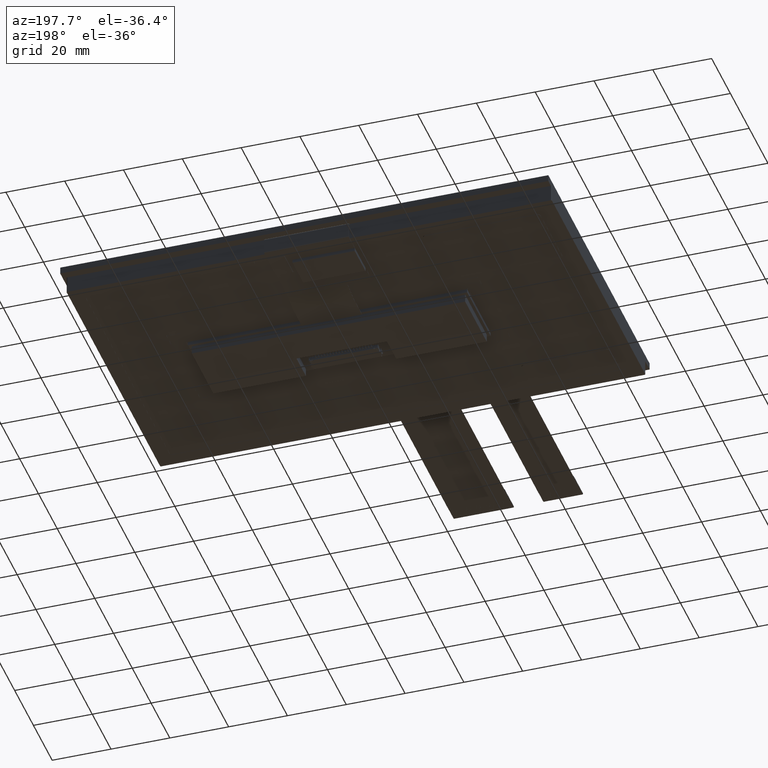
[diagram: clean part render]
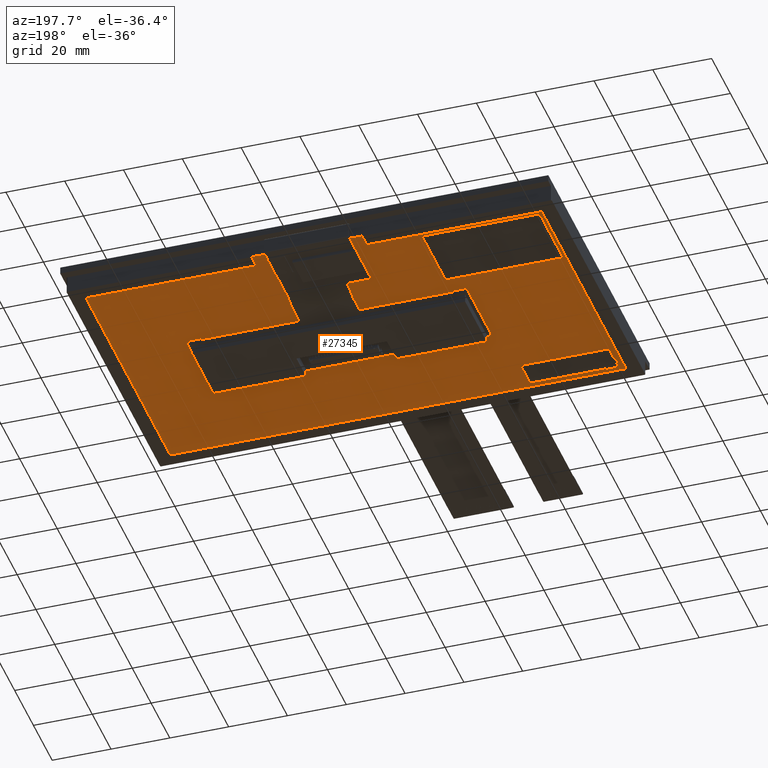
[diagram: same view with one face highlighted and labeled with its STEP entity id]
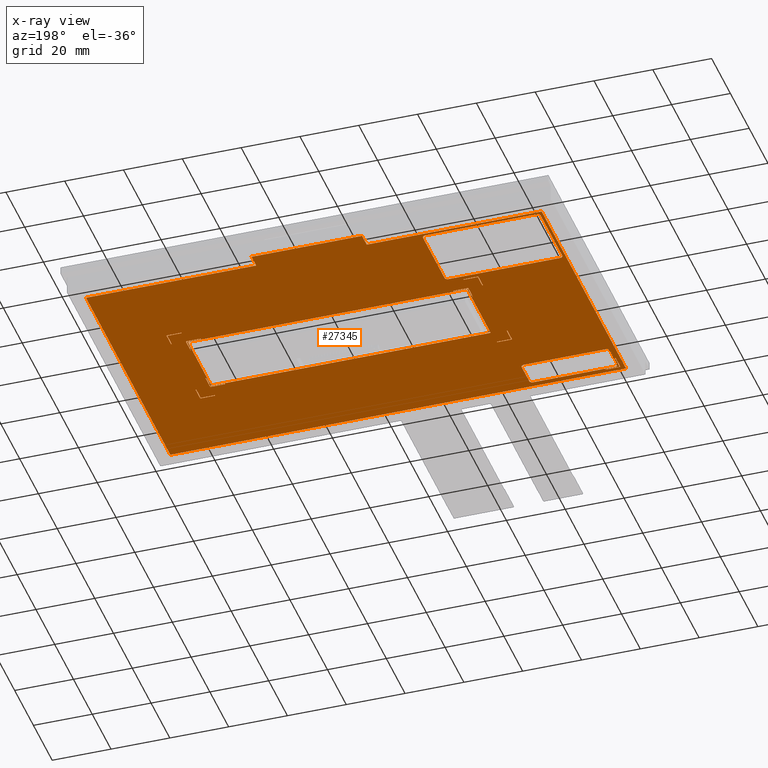
[diagram: x-ray of the same camera — body ghosted, the highlighted face saturated]
A machine part, auxiliary view. The second image highlights one B-rep face of the part: STEP entity #27345.
The next image is the same camera in x-ray: the body ghosted, the highlighted face saturated — about 0% of this face is hidden behind the body in this view.
In plain terms, the highlighted planar face has unit normal (0, -0, -1).
Its self-contained STEP definition (entity closure, byte-faithful):
#115=CIRCLE('',#27469,1.);
#119=CIRCLE('',#27476,1.);
#120=CIRCLE('',#27478,1.);
#121=CIRCLE('',#27481,1.);
#132=CIRCLE('',#27804,1.);
#134=CIRCLE('',#27808,1.00000000000003);
#136=CIRCLE('',#27812,0.999999999999999);
#138=CIRCLE('',#27816,0.999999999999976);
#753=FACE_BOUND('',#3526,.T.);
#754=FACE_BOUND('',#3527,.T.);
#755=FACE_BOUND('',#3528,.T.);
#756=FACE_BOUND('',#3529,.T.);
#757=FACE_BOUND('',#3530,.T.);
#758=FACE_BOUND('',#3531,.T.);
#759=FACE_BOUND('',#3532,.T.);
#760=FACE_BOUND('',#3533,.T.);
#761=FACE_BOUND('',#3534,.T.);
#762=FACE_BOUND('',#3535,.T.);
#763=FACE_BOUND('',#3536,.T.);
#2075=FACE_OUTER_BOUND('',#3525,.T.);
#3525=EDGE_LOOP('',(#24510,#24511,#24512,#24513,#24514,#24515,#24516,#24517));
#3526=EDGE_LOOP('',(#24518,#24519,#24520,#24521,#24522,#24523,#24524,#24525));
#3527=EDGE_LOOP('',(#24526,#24527,#24528,#24529,#24530,#24531,#24532,#24533));
#3528=EDGE_LOOP('',(#24534,#24535,#24536,#24537));
#3529=EDGE_LOOP('',(#24538,#24539,#24540,#24541,#24542,#24543));
#3530=EDGE_LOOP('',(#24544,#24545,#24546,#24547,#24548,#24549));
#3531=EDGE_LOOP('',(#24550,#24551,#24552,#24553,#24554,#24555));
#3532=EDGE_LOOP('',(#24556,#24557,#24558,#24559,#24560,#24561));
#3533=EDGE_LOOP('',(#24562,#24563,#24564,#24565,#24566,#24567));
#3534=EDGE_LOOP('',(#24568,#24569,#24570,#24571,#24572,#24573));
#3535=EDGE_LOOP('',(#24574,#24575,#24576,#24577,#24578,#24579));
#3536=EDGE_LOOP('',(#24580,#24581,#24582,#24583,#24584,#24585));
#3689=LINE('',#36575,#7159);
#3695=LINE('',#36590,#7165);
#3697=LINE('',#36596,#7167);
#3698=LINE('',#36598,#7168);
#4604=LINE('',#38442,#8074);
#4608=LINE('',#38454,#8078);
#4612=LINE('',#38466,#8082);
#4616=LINE('',#38477,#8086);
#6884=LINE('',#43853,#10354);
#6887=LINE('',#43858,#10357);
#6889=LINE('',#43862,#10359);
#6891=LINE('',#43865,#10361);
#6892=LINE('',#43869,#10362);
#6896=LINE('',#43877,#10366);
#6899=LINE('',#43883,#10369);
#6902=LINE('',#43889,#10372);
#6905=LINE('',#43895,#10375);
#6908=LINE('',#43901,#10378);
#6911=LINE('',#43907,#10381);
#6918=LINE('',#43925,#10388);
#6919=LINE('',#43928,#10389);
#6920=LINE('',#43930,#10390);
#6921=LINE('',#43932,#10391);
#6922=LINE('',#43934,#10392);
#6923=LINE('',#43936,#10393);
#6924=LINE('',#43937,#10394);
#6925=LINE('',#43940,#10395);
#6926=LINE('',#43942,#10396);
#6927=LINE('',#43944,#10397);
#6928=LINE('',#43946,#10398);
#6929=LINE('',#43948,#10399);
#6930=LINE('',#43949,#10400);
#6931=LINE('',#43952,#10401);
#6932=LINE('',#43954,#10402);
#6933=LINE('',#43956,#10403);
#6934=LINE('',#43958,#10404);
#6935=LINE('',#43960,#10405);
#6936=LINE('',#43961,#10406);
#6937=LINE('',#43964,#10407);
#6938=LINE('',#43966,#10408);
#6939=LINE('',#43968,#10409);
#6940=LINE('',#43970,#10410);
#6941=LINE('',#43972,#10411);
#6942=LINE('',#43973,#10412);
#6943=LINE('',#43976,#10413);
#6944=LINE('',#43978,#10414);
#6945=LINE('',#43980,#10415);
#6946=LINE('',#43982,#10416);
#6947=LINE('',#43984,#10417);
#6948=LINE('',#43985,#10418);
#6949=LINE('',#43988,#10419);
#6950=LINE('',#43990,#10420);
#6951=LINE('',#43992,#10421);
#6952=LINE('',#43994,#10422);
#6953=LINE('',#43996,#10423);
#6954=LINE('',#43997,#10424);
#6955=LINE('',#44000,#10425);
#6956=LINE('',#44002,#10426);
#6957=LINE('',#44004,#10427);
#6958=LINE('',#44006,#10428);
#6959=LINE('',#44008,#10429);
#6960=LINE('',#44009,#10430);
#6961=LINE('',#44012,#10431);
#6962=LINE('',#44014,#10432);
#6963=LINE('',#44016,#10433);
#6964=LINE('',#44018,#10434);
#6965=LINE('',#44020,#10435);
#6966=LINE('',#44021,#10436);
#7159=VECTOR('',#29430,10.);
#7165=VECTOR('',#29446,10.);
#7167=VECTOR('',#29454,10.);
#7168=VECTOR('',#29457,10.);
#8074=VECTOR('',#31009,10.);
#8078=VECTOR('',#31021,10.);
#8082=VECTOR('',#31033,10.);
#8086=VECTOR('',#31045,10.);
#10354=VECTOR('',#36029,10.);
#10357=VECTOR('',#36034,10.);
#10359=VECTOR('',#36038,10.);
#10361=VECTOR('',#36042,10.);
#10362=VECTOR('',#36045,10.);
#10366=VECTOR('',#36051,10.);
#10369=VECTOR('',#36056,10.);
#10372=VECTOR('',#36061,10.);
#10375=VECTOR('',#36066,10.);
#10378=VECTOR('',#36071,10.);
#10381=VECTOR('',#36076,10.);
#10388=VECTOR('',#36093,1000.);
#10389=VECTOR('',#36094,1000.);
#10390=VECTOR('',#36095,1000.);
#10391=VECTOR('',#36096,1000.);
#10392=VECTOR('',#36097,1000.);
#10393=VECTOR('',#36098,1000.);
#10394=VECTOR('',#36099,1000.);
#10395=VECTOR('',#36100,1000.);
#10396=VECTOR('',#36101,1000.);
#10397=VECTOR('',#36102,1000.);
#10398=VECTOR('',#36103,1000.);
#10399=VECTOR('',#36104,1000.);
#10400=VECTOR('',#36105,1000.);
#10401=VECTOR('',#36106,1000.);
#10402=VECTOR('',#36107,1000.);
#10403=VECTOR('',#36108,1000.);
#10404=VECTOR('',#36109,1000.);
#10405=VECTOR('',#36110,1000.);
#10406=VECTOR('',#36111,1000.);
#10407=VECTOR('',#36112,1000.);
#10408=VECTOR('',#36113,1000.);
#10409=VECTOR('',#36114,1000.);
#10410=VECTOR('',#36115,1000.);
#10411=VECTOR('',#36116,1000.);
#10412=VECTOR('',#36117,1000.);
#10413=VECTOR('',#36118,1000.);
#10414=VECTOR('',#36119,1000.);
#10415=VECTOR('',#36120,1000.);
#10416=VECTOR('',#36121,1000.);
#10417=VECTOR('',#36122,1000.);
#10418=VECTOR('',#36123,1000.);
#10419=VECTOR('',#36124,1000.);
#10420=VECTOR('',#36125,1000.);
#10421=VECTOR('',#36126,1000.);
#10422=VECTOR('',#36127,1000.);
#10423=VECTOR('',#36128,1000.);
#10424=VECTOR('',#36129,1000.);
#10425=VECTOR('',#36130,1000.);
#10426=VECTOR('',#36131,1000.);
#10427=VECTOR('',#36132,1000.);
#10428=VECTOR('',#36133,1000.);
#10429=VECTOR('',#36134,1000.);
#10430=VECTOR('',#36135,1000.);
#10431=VECTOR('',#36136,1000.);
#10432=VECTOR('',#36137,1000.);
#10433=VECTOR('',#36138,1000.);
#10434=VECTOR('',#36139,1000.);
#10435=VECTOR('',#36140,1000.);
#10436=VECTOR('',#36141,1000.);
#10599=VERTEX_POINT('',#36554);
#10600=VERTEX_POINT('',#36556);
#10607=VERTEX_POINT('',#36574);
#10608=VERTEX_POINT('',#36578);
#10609=VERTEX_POINT('',#36582);
#10610=VERTEX_POINT('',#36584);
#10611=VERTEX_POINT('',#36588);
#10612=VERTEX_POINT('',#36592);
#11223=VERTEX_POINT('',#38432);
#11224=VERTEX_POINT('',#38433);
#11227=VERTEX_POINT('',#38441);
#11229=VERTEX_POINT('',#38447);
#11231=VERTEX_POINT('',#38453);
#11233=VERTEX_POINT('',#38459);
#11235=VERTEX_POINT('',#38465);
#11237=VERTEX_POINT('',#38471);
#12987=VERTEX_POINT('',#43851);
#12988=VERTEX_POINT('',#43852);
#12989=VERTEX_POINT('',#43857);
#12990=VERTEX_POINT('',#43861);
#12991=VERTEX_POINT('',#43867);
#12992=VERTEX_POINT('',#43868);
#12995=VERTEX_POINT('',#43876);
#12997=VERTEX_POINT('',#43882);
#12999=VERTEX_POINT('',#43888);
#13001=VERTEX_POINT('',#43894);
#13003=VERTEX_POINT('',#43900);
#13005=VERTEX_POINT('',#43906);
#13012=VERTEX_POINT('',#43926);
#13013=VERTEX_POINT('',#43927);
#13014=VERTEX_POINT('',#43929);
#13015=VERTEX_POINT('',#43931);
#13016=VERTEX_POINT('',#43933);
#13017=VERTEX_POINT('',#43935);
#13018=VERTEX_POINT('',#43938);
#13019=VERTEX_POINT('',#43939);
#13020=VERTEX_POINT('',#43941);
#13021=VERTEX_POINT('',#43943);
#13022=VERTEX_POINT('',#43945);
#13023=VERTEX_POINT('',#43947);
#13024=VERTEX_POINT('',#43950);
#13025=VERTEX_POINT('',#43951);
#13026=VERTEX_POINT('',#43953);
#13027=VERTEX_POINT('',#43955);
#13028=VERTEX_POINT('',#43957);
#13029=VERTEX_POINT('',#43959);
#13030=VERTEX_POINT('',#43962);
#13031=VERTEX_POINT('',#43963);
#13032=VERTEX_POINT('',#43965);
#13033=VERTEX_POINT('',#43967);
#13034=VERTEX_POINT('',#43969);
#13035=VERTEX_POINT('',#43971);
#13036=VERTEX_POINT('',#43974);
#13037=VERTEX_POINT('',#43975);
#13038=VERTEX_POINT('',#43977);
#13039=VERTEX_POINT('',#43979);
#13040=VERTEX_POINT('',#43981);
#13041=VERTEX_POINT('',#43983);
#13042=VERTEX_POINT('',#43986);
#13043=VERTEX_POINT('',#43987);
#13044=VERTEX_POINT('',#43989);
#13045=VERTEX_POINT('',#43991);
#13046=VERTEX_POINT('',#43993);
#13047=VERTEX_POINT('',#43995);
#13048=VERTEX_POINT('',#43998);
#13049=VERTEX_POINT('',#43999);
#13050=VERTEX_POINT('',#44001);
#13051=VERTEX_POINT('',#44003);
#13052=VERTEX_POINT('',#44005);
#13053=VERTEX_POINT('',#44007);
#13054=VERTEX_POINT('',#44010);
#13055=VERTEX_POINT('',#44011);
#13056=VERTEX_POINT('',#44013);
#13057=VERTEX_POINT('',#44015);
#13058=VERTEX_POINT('',#44017);
#13059=VERTEX_POINT('',#44019);
#13197=EDGE_CURVE('',#10600,#10599,#115,.T.);
#13206=EDGE_CURVE('',#10607,#10600,#3689,.T.);
#13208=EDGE_CURVE('',#10608,#10607,#119,.T.);
#13211=EDGE_CURVE('',#10610,#10609,#120,.T.);
#13214=EDGE_CURVE('',#10609,#10611,#3695,.T.);
#13216=EDGE_CURVE('',#10611,#10612,#121,.T.);
#13217=EDGE_CURVE('',#10612,#10608,#3697,.T.);
#13218=EDGE_CURVE('',#10599,#10610,#3698,.T.);
#14132=EDGE_CURVE('',#11223,#11224,#132,.T.);
#14136=EDGE_CURVE('',#11227,#11223,#4604,.T.);
#14139=EDGE_CURVE('',#11229,#11227,#134,.T.);
#14142=EDGE_CURVE('',#11231,#11229,#4608,.T.);
#14145=EDGE_CURVE('',#11233,#11231,#136,.T.);
#14148=EDGE_CURVE('',#11235,#11233,#4612,.T.);
#14151=EDGE_CURVE('',#11237,#11235,#138,.T.);
#14154=EDGE_CURVE('',#11224,#11237,#4616,.T.);
#16840=EDGE_CURVE('',#12987,#12988,#6884,.T.);
#16843=EDGE_CURVE('',#12989,#12987,#6887,.T.);
#16845=EDGE_CURVE('',#12990,#12989,#6889,.T.);
#16847=EDGE_CURVE('',#12988,#12990,#6891,.T.);
#16848=EDGE_CURVE('',#12991,#12992,#6892,.T.);
#16852=EDGE_CURVE('',#12992,#12995,#6896,.T.);
#16855=EDGE_CURVE('',#12995,#12997,#6899,.T.);
#16858=EDGE_CURVE('',#12997,#12999,#6902,.T.);
#16861=EDGE_CURVE('',#12999,#13001,#6905,.T.);
#16864=EDGE_CURVE('',#13001,#13003,#6908,.T.);
#16867=EDGE_CURVE('',#13003,#13005,#6911,.T.);
#16877=EDGE_CURVE('',#12991,#13005,#6918,.T.);
#16878=EDGE_CURVE('',#13012,#13013,#6919,.T.);
#16879=EDGE_CURVE('',#13014,#13012,#6920,.T.);
#16880=EDGE_CURVE('',#13015,#13014,#6921,.T.);
#16881=EDGE_CURVE('',#13016,#13015,#6922,.T.);
#16882=EDGE_CURVE('',#13017,#13016,#6923,.T.);
#16883=EDGE_CURVE('',#13013,#13017,#6924,.T.);
#16884=EDGE_CURVE('',#13018,#13019,#6925,.T.);
#16885=EDGE_CURVE('',#13020,#13018,#6926,.T.);
#16886=EDGE_CURVE('',#13021,#13020,#6927,.T.);
#16887=EDGE_CURVE('',#13022,#13021,#6928,.T.);
#16888=EDGE_CURVE('',#13023,#13022,#6929,.T.);
#16889=EDGE_CURVE('',#13019,#13023,#6930,.T.);
#16890=EDGE_CURVE('',#13024,#13025,#6931,.T.);
#16891=EDGE_CURVE('',#13026,#13024,#6932,.T.);
#16892=EDGE_CURVE('',#13027,#13026,#6933,.T.);
#16893=EDGE_CURVE('',#13028,#13027,#6934,.T.);
#16894=EDGE_CURVE('',#13029,#13028,#6935,.T.);
#16895=EDGE_CURVE('',#13025,#13029,#6936,.T.);
#16896=EDGE_CURVE('',#13030,#13031,#6937,.T.);
#16897=EDGE_CURVE('',#13032,#13030,#6938,.T.);
#16898=EDGE_CURVE('',#13033,#13032,#6939,.T.);
#16899=EDGE_CURVE('',#13034,#13033,#6940,.T.);
#16900=EDGE_CURVE('',#13035,#13034,#6941,.T.);
#16901=EDGE_CURVE('',#13031,#13035,#6942,.T.);
#16902=EDGE_CURVE('',#13036,#13037,#6943,.T.);
#16903=EDGE_CURVE('',#13038,#13036,#6944,.T.);
#16904=EDGE_CURVE('',#13039,#13038,#6945,.T.);
#16905=EDGE_CURVE('',#13040,#13039,#6946,.T.);
#16906=EDGE_CURVE('',#13041,#13040,#6947,.T.);
#16907=EDGE_CURVE('',#13037,#13041,#6948,.T.);
#16908=EDGE_CURVE('',#13042,#13043,#6949,.T.);
#16909=EDGE_CURVE('',#13044,#13042,#6950,.T.);
#16910=EDGE_CURVE('',#13045,#13044,#6951,.T.);
#16911=EDGE_CURVE('',#13046,#13045,#6952,.T.);
#16912=EDGE_CURVE('',#13047,#13046,#6953,.T.);
#16913=EDGE_CURVE('',#13043,#13047,#6954,.T.);
#16914=EDGE_CURVE('',#13048,#13049,#6955,.T.);
#16915=EDGE_CURVE('',#13050,#13048,#6956,.T.);
#16916=EDGE_CURVE('',#13051,#13050,#6957,.T.);
#16917=EDGE_CURVE('',#13052,#13051,#6958,.T.);
#16918=EDGE_CURVE('',#13053,#13052,#6959,.T.);
#16919=EDGE_CURVE('',#13049,#13053,#6960,.T.);
#16920=EDGE_CURVE('',#13054,#13055,#6961,.T.);
#16921=EDGE_CURVE('',#13056,#13054,#6962,.T.);
#16922=EDGE_CURVE('',#13057,#13056,#6963,.T.);
#16923=EDGE_CURVE('',#13058,#13057,#6964,.T.);
#16924=EDGE_CURVE('',#13059,#13058,#6965,.T.);
#16925=EDGE_CURVE('',#13055,#13059,#6966,.T.);
#24510=ORIENTED_EDGE('',*,*,#16848,.T.);
#24511=ORIENTED_EDGE('',*,*,#16852,.T.);
#24512=ORIENTED_EDGE('',*,*,#16855,.T.);
#24513=ORIENTED_EDGE('',*,*,#16858,.T.);
#24514=ORIENTED_EDGE('',*,*,#16861,.T.);
#24515=ORIENTED_EDGE('',*,*,#16864,.T.);
#24516=ORIENTED_EDGE('',*,*,#16867,.T.);
#24517=ORIENTED_EDGE('',*,*,#16877,.F.);
#24518=ORIENTED_EDGE('',*,*,#13211,.T.);
#24519=ORIENTED_EDGE('',*,*,#13214,.T.);
#24520=ORIENTED_EDGE('',*,*,#13216,.T.);
#24521=ORIENTED_EDGE('',*,*,#13217,.T.);
#24522=ORIENTED_EDGE('',*,*,#13208,.T.);
#24523=ORIENTED_EDGE('',*,*,#13206,.T.);
#24524=ORIENTED_EDGE('',*,*,#13197,.T.);
#24525=ORIENTED_EDGE('',*,*,#13218,.T.);
#24526=ORIENTED_EDGE('',*,*,#14132,.T.);
#24527=ORIENTED_EDGE('',*,*,#14154,.T.);
#24528=ORIENTED_EDGE('',*,*,#14151,.T.);
#24529=ORIENTED_EDGE('',*,*,#14148,.T.);
#24530=ORIENTED_EDGE('',*,*,#14145,.T.);
#24531=ORIENTED_EDGE('',*,*,#14142,.T.);
#24532=ORIENTED_EDGE('',*,*,#14139,.T.);
#24533=ORIENTED_EDGE('',*,*,#14136,.T.);
#24534=ORIENTED_EDGE('',*,*,#16840,.T.);
#24535=ORIENTED_EDGE('',*,*,#16847,.T.);
#24536=ORIENTED_EDGE('',*,*,#16845,.T.);
#24537=ORIENTED_EDGE('',*,*,#16843,.T.);
#24538=ORIENTED_EDGE('',*,*,#16878,.F.);
#24539=ORIENTED_EDGE('',*,*,#16879,.F.);
#24540=ORIENTED_EDGE('',*,*,#16880,.F.);
#24541=ORIENTED_EDGE('',*,*,#16881,.F.);
#24542=ORIENTED_EDGE('',*,*,#16882,.F.);
#24543=ORIENTED_EDGE('',*,*,#16883,.F.);
#24544=ORIENTED_EDGE('',*,*,#16884,.F.);
#24545=ORIENTED_EDGE('',*,*,#16885,.F.);
#24546=ORIENTED_EDGE('',*,*,#16886,.F.);
#24547=ORIENTED_EDGE('',*,*,#16887,.F.);
#24548=ORIENTED_EDGE('',*,*,#16888,.F.);
#24549=ORIENTED_EDGE('',*,*,#16889,.F.);
#24550=ORIENTED_EDGE('',*,*,#16890,.F.);
#24551=ORIENTED_EDGE('',*,*,#16891,.F.);
#24552=ORIENTED_EDGE('',*,*,#16892,.F.);
#24553=ORIENTED_EDGE('',*,*,#16893,.F.);
#24554=ORIENTED_EDGE('',*,*,#16894,.F.);
#24555=ORIENTED_EDGE('',*,*,#16895,.F.);
#24556=ORIENTED_EDGE('',*,*,#16896,.F.);
#24557=ORIENTED_EDGE('',*,*,#16897,.F.);
#24558=ORIENTED_EDGE('',*,*,#16898,.F.);
#24559=ORIENTED_EDGE('',*,*,#16899,.F.);
#24560=ORIENTED_EDGE('',*,*,#16900,.F.);
#24561=ORIENTED_EDGE('',*,*,#16901,.F.);
#24562=ORIENTED_EDGE('',*,*,#16902,.F.);
#24563=ORIENTED_EDGE('',*,*,#16903,.F.);
#24564=ORIENTED_EDGE('',*,*,#16904,.F.);
#24565=ORIENTED_EDGE('',*,*,#16905,.F.);
#24566=ORIENTED_EDGE('',*,*,#16906,.F.);
#24567=ORIENTED_EDGE('',*,*,#16907,.F.);
#24568=ORIENTED_EDGE('',*,*,#16908,.F.);
#24569=ORIENTED_EDGE('',*,*,#16909,.F.);
#24570=ORIENTED_EDGE('',*,*,#16910,.F.);
#24571=ORIENTED_EDGE('',*,*,#16911,.F.);
#24572=ORIENTED_EDGE('',*,*,#16912,.F.);
#24573=ORIENTED_EDGE('',*,*,#16913,.F.);
#24574=ORIENTED_EDGE('',*,*,#16914,.F.);
#24575=ORIENTED_EDGE('',*,*,#16915,.F.);
#24576=ORIENTED_EDGE('',*,*,#16916,.F.);
#24577=ORIENTED_EDGE('',*,*,#16917,.F.);
#24578=ORIENTED_EDGE('',*,*,#16918,.F.);
#24579=ORIENTED_EDGE('',*,*,#16919,.F.);
#24580=ORIENTED_EDGE('',*,*,#16920,.F.);
#24581=ORIENTED_EDGE('',*,*,#16921,.F.);
#24582=ORIENTED_EDGE('',*,*,#16922,.F.);
#24583=ORIENTED_EDGE('',*,*,#16923,.F.);
#24584=ORIENTED_EDGE('',*,*,#16924,.F.);
#24585=ORIENTED_EDGE('',*,*,#16925,.F.);
#25974=PLANE('',#29191);
#27345=ADVANCED_FACE('',(#2075,#753,#754,#755,#756,#757,#758,#759,#760,
#761,#762,#763),#25974,.T.);
#27469=AXIS2_PLACEMENT_3D('',#36557,#29413,#29414);
#27476=AXIS2_PLACEMENT_3D('',#36579,#29434,#29435);
#27478=AXIS2_PLACEMENT_3D('',#36585,#29440,#29441);
#27481=AXIS2_PLACEMENT_3D('',#36594,#29450,#29451);
#27804=AXIS2_PLACEMENT_3D('',#38434,#31001,#31002);
#27808=AXIS2_PLACEMENT_3D('',#38448,#31014,#31015);
#27812=AXIS2_PLACEMENT_3D('',#38460,#31026,#31027);
#27816=AXIS2_PLACEMENT_3D('',#38472,#31038,#31039);
#29191=AXIS2_PLACEMENT_3D('',#43924,#36091,#36092);
#29413=DIRECTION('center_axis',(-1.46302386084131E-98,5.00520773795775E-147,
1.));
#29414=DIRECTION('ref_axis',(-0.707106781186548,-0.707106781186547,1.14854136539068E-113));
#29430=DIRECTION('',(1.33226762955019E-16,-1.,1.94913933105842E-114));
#29434=DIRECTION('center_axis',(-1.46302386084131E-98,5.00520773795775E-147,
1.));
#29435=DIRECTION('ref_axis',(-0.707106781186547,0.707106781186548,1.14854136539068E-113));
#29440=DIRECTION('center_axis',(-1.46302386084131E-98,5.00520773795775E-147,
1.));
#29441=DIRECTION('ref_axis',(0.707106781186549,-0.707106781186546,-1.14854136539069E-113));
#29446=DIRECTION('',(4.88498130835069E-16,1.,7.14684421388087E-114));
#29450=DIRECTION('center_axis',(-1.46302386084131E-98,5.00520773795775E-147,
1.));
#29451=DIRECTION('ref_axis',(0.707106781186548,0.707106781186547,-1.14854136539068E-113));
#29454=DIRECTION('',(-1.,-1.05531781441081E-227,-1.46302386084131E-98));
#29457=DIRECTION('',(1.,-2.22044604925031E-16,1.46302386084131E-98));
#31001=DIRECTION('center_axis',(-1.46302386084131E-98,5.00520773795775E-147,
1.));
#31002=DIRECTION('ref_axis',(-1.,-4.29467087377735E-228,-1.46302386084131E-98));
#31009=DIRECTION('',(0.,-1.,5.00520773795775E-147));
#31014=DIRECTION('center_axis',(-1.46302386084131E-98,5.00520773795775E-147,
1.));
#31015=DIRECTION('ref_axis',(-1.,-4.29467087377735E-228,-1.46302386084131E-98));
#31021=DIRECTION('',(-1.,-4.29467087377735E-228,-1.46302386084131E-98));
#31026=DIRECTION('center_axis',(-1.46302386084131E-98,5.00520773795775E-147,
1.));
#31027=DIRECTION('ref_axis',(-1.,-4.29467087377735E-228,-1.46302386084131E-98));
#31033=DIRECTION('',(0.,1.,-5.00520773795775E-147));
#31038=DIRECTION('center_axis',(-1.46302386084131E-98,5.00520773795775E-147,
1.));
#31039=DIRECTION('ref_axis',(-1.,-4.29467087377735E-228,-1.46302386084131E-98));
#31045=DIRECTION('',(1.,4.29467087377735E-228,1.46302386084131E-98));
#36029=DIRECTION('',(0.,1.,-5.00520773795775E-147));
#36034=DIRECTION('',(1.,4.29467087377735E-228,1.46302386084131E-98));
#36038=DIRECTION('',(0.,-1.,5.00520773795775E-147));
#36042=DIRECTION('',(-1.,-4.29467087377735E-228,-1.46302386084131E-98));
#36045=DIRECTION('',(0.,-1.,5.00520773795775E-147));
#36051=DIRECTION('',(1.,4.29467087377735E-228,1.46302386084131E-98));
#36056=DIRECTION('',(0.,-1.,5.00520773795775E-147));
#36061=DIRECTION('',(-1.,-4.29467087377735E-228,-1.46302386084131E-98));
#36066=DIRECTION('',(0.,1.,-5.00520773795775E-147));
#36071=DIRECTION('',(1.,4.29467087377735E-228,1.46302386084131E-98));
#36076=DIRECTION('',(0.,1.,-5.00520773795775E-147));
#36091=DIRECTION('center_axis',(1.46302386084131E-98,-5.00520773795775E-147,
-1.));
#36092=DIRECTION('ref_axis',(1.,4.29467087377735E-228,1.46302386084131E-98));
#36093=DIRECTION('',(-1.,-4.29467087377735E-228,-1.46302386084131E-98));
#36094=DIRECTION('',(0.,-1.,5.00520773795775E-147));
#36095=DIRECTION('',(1.,4.29467087377735E-228,1.46302386084131E-98));
#36096=DIRECTION('',(0.,1.,-5.00520773795775E-147));
#36097=DIRECTION('',(-1.,-4.29467087377735E-228,-1.46302386084131E-98));
#36098=DIRECTION('',(0.,1.,-5.00520773795775E-147));
#36099=DIRECTION('',(-1.,-4.29467087377735E-228,-1.46302386084131E-98));
#36100=DIRECTION('',(-1.,-4.29467087377735E-228,-1.46302386084131E-98));
#36101=DIRECTION('',(0.,-1.,5.00520773795775E-147));
#36102=DIRECTION('',(1.,4.29467087377735E-228,1.46302386084131E-98));
#36103=DIRECTION('',(0.,1.,-5.00520773795775E-147));
#36104=DIRECTION('',(-1.,-4.29467087377735E-228,-1.46302386084131E-98));
#36105=DIRECTION('',(0.,-1.,5.00520773795775E-147));
#36106=DIRECTION('',(-1.,-4.29467087377735E-228,-1.46302386084131E-98));
#36107=DIRECTION('',(0.,-1.,5.00520773795775E-147));
#36108=DIRECTION('',(1.,4.29467087377735E-228,1.46302386084131E-98));
#36109=DIRECTION('',(0.,1.,-5.00520773795775E-147));
#36110=DIRECTION('',(1.,4.29467087377735E-228,1.46302386084131E-98));
#36111=DIRECTION('',(0.,1.,-5.00520773795775E-147));
#36112=DIRECTION('',(0.,1.,-5.00520773795775E-147));
#36113=DIRECTION('',(-1.,-4.29467087377735E-228,-1.46302386084131E-98));
#36114=DIRECTION('',(0.,-1.,5.00520773795775E-147));
#36115=DIRECTION('',(1.,4.29467087377735E-228,1.46302386084131E-98));
#36116=DIRECTION('',(0.,-1.,5.00520773795775E-147));
#36117=DIRECTION('',(1.,4.29467087377735E-228,1.46302386084131E-98));
#36118=DIRECTION('',(0.,-1.,5.00520773795775E-147));
#36119=DIRECTION('',(1.,4.29467087377735E-228,1.46302386084131E-98));
#36120=DIRECTION('',(0.,1.,-5.00520773795775E-147));
#36121=DIRECTION('',(-1.,-4.29467087377735E-228,-1.46302386084131E-98));
#36122=DIRECTION('',(0.,-1.,5.00520773795775E-147));
#36123=DIRECTION('',(1.,4.29467087377735E-228,1.46302386084131E-98));
#36124=DIRECTION('',(0.,-1.,5.00520773795775E-147));
#36125=DIRECTION('',(-1.,2.89120579329468E-15,-1.46302386084131E-98));
#36126=DIRECTION('',(0.,-1.,5.00520773795775E-147));
#36127=DIRECTION('',(1.,4.29467087377735E-228,1.46302386084131E-98));
#36128=DIRECTION('',(2.77555756156289E-15,1.,4.06070693970504E-113));
#36129=DIRECTION('',(-1.,-4.29467087377735E-228,-1.46302386084131E-98));
#36130=DIRECTION('',(0.,1.,-5.00520773795775E-147));
#36131=DIRECTION('',(-1.,-4.29467087377735E-228,-1.46302386084131E-98));
#36132=DIRECTION('',(1.38777878078145E-15,-1.,2.03035346985252E-113));
#36133=DIRECTION('',(1.,-2.77555756156289E-15,1.46302386084131E-98));
#36134=DIRECTION('',(0.,1.,-5.00520773795775E-147));
#36135=DIRECTION('',(-1.,-4.29467087377735E-228,-1.46302386084131E-98));
#36136=DIRECTION('',(0.,1.,-5.00520773795775E-147));
#36137=DIRECTION('',(-1.,-2.77555756156289E-15,-1.46302386084131E-98));
#36138=DIRECTION('',(-1.38777878078145E-15,-1.,-2.03035346985252E-113));
#36139=DIRECTION('',(1.,4.29467087377735E-228,1.46302386084131E-98));
#36140=DIRECTION('',(0.,1.,-5.00520773795775E-147));
#36141=DIRECTION('',(1.,4.29467087377735E-228,1.46302386084131E-98));
#36554=CARTESIAN_POINT('',(-77.0149999999791,21.3597566730067,-8.97500000000003));
#36556=CARTESIAN_POINT('',(-78.0149999999791,22.3597566730067,-8.97500000000003));
#36557=CARTESIAN_POINT('Origin',(-77.0149999999791,22.3597566730067,-8.97500000000003));
#36574=CARTESIAN_POINT('',(-78.0149999999791,45.3597566730067,-8.97500000000003));
#36575=CARTESIAN_POINT('',(-78.0149999999791,-0.475243326993353,-8.97500000000003));
#36578=CARTESIAN_POINT('',(-77.0149999999791,46.3597566730067,-8.97500000000003));
#36579=CARTESIAN_POINT('Origin',(-77.0149999999791,45.3597566730067,-8.97500000000003));
#36582=CARTESIAN_POINT('',(-38.0149999999791,22.3597566730067,-8.97500000000003));
#36584=CARTESIAN_POINT('',(-39.0149999999791,21.3597566730067,-8.97500000000003));
#36585=CARTESIAN_POINT('Origin',(-39.0149999999791,22.3597566730067,-8.97500000000003));
#36588=CARTESIAN_POINT('',(-38.0149999999791,45.3597566730067,-8.97500000000003));
#36590=CARTESIAN_POINT('',(-38.0149999999791,-6.72524332699336,-8.97500000000003));
#36592=CARTESIAN_POINT('',(-39.0149999999791,46.3597566730067,-8.97500000000003));
#36594=CARTESIAN_POINT('Origin',(-39.0149999999791,45.3597566730067,-8.97500000000003));
#36596=CARTESIAN_POINT('',(-70.8499999999896,46.3597566730067,-8.97500000000003));
#36598=CARTESIAN_POINT('',(-80.8499999999896,21.3597566730067,-8.97500000000003));
#38432=CARTESIAN_POINT('',(-77.015,-39.6402433269934,-8.97500000000003));
#38433=CARTESIAN_POINT('',(-76.015,-40.6402433269934,-8.97500000000003));
#38434=CARTESIAN_POINT('Origin',(-76.015,-39.6402433269934,-8.97500000000003));
#38441=CARTESIAN_POINT('',(-77.015,-31.6402433269934,-8.97500000000003));
#38442=CARTESIAN_POINT('',(-77.015,-43.4752433269934,-8.97500000000003));
#38447=CARTESIAN_POINT('',(-76.015,-30.6402433269934,-8.97500000000003));
#38448=CARTESIAN_POINT('Origin',(-76.015,-31.6402433269934,-8.97500000000003));
#38453=CARTESIAN_POINT('',(-48.015,-30.6402433269934,-8.97500000000003));
#38454=CARTESIAN_POINT('',(-79.85,-30.6402433269934,-8.97500000000003));
#38459=CARTESIAN_POINT('',(-47.015,-31.6402433269934,-8.97500000000003));
#38460=CARTESIAN_POINT('Origin',(-48.015,-31.6402433269934,-8.97500000000003));
#38465=CARTESIAN_POINT('',(-47.015,-39.6402433269934,-8.97500000000003));
#38466=CARTESIAN_POINT('',(-47.015,-39.4752433269934,-8.97500000000003));
#38471=CARTESIAN_POINT('',(-48.015,-40.6402433269934,-8.97500000000003));
#38472=CARTESIAN_POINT('Origin',(-48.015,-39.6402433269934,-8.97500000000003));
#38477=CARTESIAN_POINT('',(-65.85,-40.6402433269934,-8.97500000000003));
#43851=CARTESIAN_POINT('',(51.875,-10.7302433269934,-8.97500000000003));
#43852=CARTESIAN_POINT('',(51.875,14.2697566730066,-8.97500000000003));
#43853=CARTESIAN_POINT('',(51.875,-16.5202433269934,-8.97500000000003));
#43857=CARTESIAN_POINT('',(-43.125,-10.7302433269934,-8.97500000000003));
#43858=CARTESIAN_POINT('',(-15.905,-10.7302433269934,-8.97500000000003));
#43861=CARTESIAN_POINT('',(-43.125,14.2697566730066,-8.97500000000003));
#43862=CARTESIAN_POINT('',(-43.125,-16.5202433269934,-8.97500000000003));
#43865=CARTESIAN_POINT('',(-15.905,14.2697566730066,-8.97500000000003));
#43867=CARTESIAN_POINT('',(18.06,52.3597566730066,-8.97500000000003));
#43868=CARTESIAN_POINT('',(18.06,47.3597566730066,-8.97500000000003));
#43869=CARTESIAN_POINT('',(18.06,0.0247566730066229,-8.97500000000003));
#43876=CARTESIAN_POINT('',(75.9850000000209,47.3597566730066,-8.97500000000003));
#43877=CARTESIAN_POINT('',(-3.84999999998954,47.3597566730066,-8.97500000000003));
#43882=CARTESIAN_POINT('',(75.9850000000209,-42.6402433269934,-8.97500000000003));
#43883=CARTESIAN_POINT('',(75.9850000000209,-44.9752433269934,-8.97500000000003));
#43888=CARTESIAN_POINT('',(-79.0149999999791,-42.6402433269934,-8.97500000000003));
#43889=CARTESIAN_POINT('',(-81.3499999999895,-42.6402433269934,-8.97500000000003));
#43894=CARTESIAN_POINT('',(-79.0149999999791,47.3597566730066,-8.97500000000003));
#43895=CARTESIAN_POINT('',(-79.0149999999791,0.0247566730066318,-8.97500000000003));
#43900=CARTESIAN_POINT('',(-19.52,47.3597566730066,-8.97500000000003));
#43901=CARTESIAN_POINT('',(-51.6025,47.3597566730066,-8.97500000000003));
#43906=CARTESIAN_POINT('',(-19.52,52.3597566730066,-8.97500000000003));
#43907=CARTESIAN_POINT('',(-19.52,2.52475667300663,-8.97500000000003));
#43924=CARTESIAN_POINT('Origin',(-83.685,-47.3102433269934,-8.97500000000003));
#43925=CARTESIAN_POINT('',(80.655,52.3597566730066,-8.97500000000003));
#43926=CARTESIAN_POINT('',(57.375,19.7697566730066,-8.97500000000003));
#43927=CARTESIAN_POINT('',(57.375,14.7697566730066,-8.97500000000003));
#43928=CARTESIAN_POINT('',(57.375,19.7697566730066,-8.97500000000003));
#43929=CARTESIAN_POINT('',(52.375,19.7697566730066,-8.97500000000003));
#43930=CARTESIAN_POINT('',(57.375,19.7697566730066,-8.97500000000003));
#43931=CARTESIAN_POINT('',(52.375,19.5697566730066,-8.97500000000003));
#43932=CARTESIAN_POINT('',(52.375,19.7697566730066,-8.97500000000003));
#43933=CARTESIAN_POINT('',(57.175,19.5697566730066,-8.97500000000003));
#43934=CARTESIAN_POINT('',(57.175,19.5697566730066,-8.97500000000003));
#43935=CARTESIAN_POINT('',(57.175,14.7697566730066,-8.97500000000003));
#43936=CARTESIAN_POINT('',(57.175,19.5697566730066,-8.97500000000003));
#43937=CARTESIAN_POINT('',(57.375,14.7697566730066,-8.97500000000003));
#43938=CARTESIAN_POINT('',(-43.625,19.5697566730066,-8.97500000000003));
#43939=CARTESIAN_POINT('',(-48.425,19.5697566730066,-8.97500000000003));
#43940=CARTESIAN_POINT('',(-48.425,19.5697566730066,-8.97500000000003));
#43941=CARTESIAN_POINT('',(-43.625,19.7697566730066,-8.97500000000003));
#43942=CARTESIAN_POINT('',(-43.625,19.7697566730066,-8.97500000000003));
#43943=CARTESIAN_POINT('',(-48.625,19.7697566730066,-8.97500000000003));
#43944=CARTESIAN_POINT('',(-48.625,19.7697566730066,-8.97500000000003));
#43945=CARTESIAN_POINT('',(-48.625,14.7697566730066,-8.97500000000003));
#43946=CARTESIAN_POINT('',(-48.625,19.7697566730066,-8.97500000000003));
#43947=CARTESIAN_POINT('',(-48.425,14.7697566730066,-8.97500000000003));
#43948=CARTESIAN_POINT('',(-48.625,14.7697566730066,-8.97500000000003));
#43949=CARTESIAN_POINT('',(-48.425,19.5697566730066,-8.97500000000003));
#43950=CARTESIAN_POINT('',(57.375,-16.2302433269934,-8.97500000000003));
#43951=CARTESIAN_POINT('',(52.375,-16.2302433269934,-8.97500000000003));
#43952=CARTESIAN_POINT('',(57.375,-16.2302433269934,-8.97500000000003));
#43953=CARTESIAN_POINT('',(57.375,-11.2302433269934,-8.97500000000003));
#43954=CARTESIAN_POINT('',(57.375,-16.2302433269934,-8.97500000000003));
#43955=CARTESIAN_POINT('',(57.175,-11.2302433269934,-8.97500000000003));
#43956=CARTESIAN_POINT('',(57.375,-11.2302433269934,-8.97500000000003));
#43957=CARTESIAN_POINT('',(57.175,-16.0302433269934,-8.97500000000003));
#43958=CARTESIAN_POINT('',(57.175,-16.0302433269934,-8.97500000000003));
#43959=CARTESIAN_POINT('',(52.375,-16.0302433269934,-8.97500000000003));
#43960=CARTESIAN_POINT('',(57.175,-16.0302433269934,-8.97500000000003));
#43961=CARTESIAN_POINT('',(52.375,-16.2302433269934,-8.97500000000003));
#43962=CARTESIAN_POINT('',(-48.625,-16.2302433269934,-8.97500000000003));
#43963=CARTESIAN_POINT('',(-48.625,-11.2302433269934,-8.97500000000003));
#43964=CARTESIAN_POINT('',(-48.625,-16.2302433269934,-8.97500000000003));
#43965=CARTESIAN_POINT('',(-43.625,-16.2302433269934,-8.97500000000003));
#43966=CARTESIAN_POINT('',(-48.625,-16.2302433269934,-8.97500000000003));
#43967=CARTESIAN_POINT('',(-43.625,-16.0302433269934,-8.97500000000003));
#43968=CARTESIAN_POINT('',(-43.625,-16.2302433269934,-8.97500000000003));
#43969=CARTESIAN_POINT('',(-48.425,-16.0302433269934,-8.97500000000003));
#43970=CARTESIAN_POINT('',(-48.425,-16.0302433269934,-8.97500000000003));
#43971=CARTESIAN_POINT('',(-48.425,-11.2302433269934,-8.97500000000003));
#43972=CARTESIAN_POINT('',(-48.425,-16.0302433269934,-8.97500000000003));
#43973=CARTESIAN_POINT('',(-48.625,-11.2302433269934,-8.97500000000003));
#43974=CARTESIAN_POINT('',(-77.315,-36.1402433269934,-8.97500000000003));
#43975=CARTESIAN_POINT('',(-77.315,-40.9402433269934,-8.97500000000003));
#43976=CARTESIAN_POINT('',(-77.315,-40.9402433269934,-8.97500000000003));
#43977=CARTESIAN_POINT('',(-77.515,-36.1402433269934,-8.97500000000003));
#43978=CARTESIAN_POINT('',(-77.515,-36.1402433269934,-8.97500000000003));
#43979=CARTESIAN_POINT('',(-77.515,-41.1402433269934,-8.97500000000003));
#43980=CARTESIAN_POINT('',(-77.515,-40.9402433269934,-8.97500000000003));
#43981=CARTESIAN_POINT('',(-72.515,-41.1402433269934,-8.97500000000003));
#43982=CARTESIAN_POINT('',(-77.315,-41.1402433269934,-8.97500000000003));
#43983=CARTESIAN_POINT('',(-72.515,-40.9402433269934,-8.97500000000003));
#43984=CARTESIAN_POINT('',(-72.515,-41.1402433269934,-8.97500000000003));
#43985=CARTESIAN_POINT('',(-77.315,-40.9402433269934,-8.97500000000003));
#43986=CARTESIAN_POINT('',(-43.425,14.5697566730066,-8.97500000000003));
#43987=CARTESIAN_POINT('',(-43.425,9.7697566730066,-8.97500000000003));
#43988=CARTESIAN_POINT('',(-43.425,14.5697566730066,-8.97500000000003));
#43989=CARTESIAN_POINT('',(-38.625,14.5697566730066,-8.97500000000003));
#43990=CARTESIAN_POINT('',(-38.625,14.5697566730066,-8.97500000000003));
#43991=CARTESIAN_POINT('',(-38.625,14.7697566730066,-8.97500000000003));
#43992=CARTESIAN_POINT('',(-38.625,14.5697566730066,-8.97500000000003));
#43993=CARTESIAN_POINT('',(-43.625,14.7697566730066,-8.97500000000003));
#43994=CARTESIAN_POINT('',(-38.625,14.7697566730066,-8.97500000000003));
#43995=CARTESIAN_POINT('',(-43.625,9.7697566730066,-8.97500000000003));
#43996=CARTESIAN_POINT('',(-43.625,14.7697566730066,-8.97500000000003));
#43997=CARTESIAN_POINT('',(-43.425,9.7697566730066,-8.97500000000003));
#43998=CARTESIAN_POINT('',(52.175,9.7697566730066,-8.97500000000003));
#43999=CARTESIAN_POINT('',(52.175,14.5697566730066,-8.97500000000003));
#44000=CARTESIAN_POINT('',(52.175,14.5697566730066,-8.97500000000003));
#44001=CARTESIAN_POINT('',(52.375,9.7697566730066,-8.97500000000003));
#44002=CARTESIAN_POINT('',(52.175,9.7697566730066,-8.97500000000003));
#44003=CARTESIAN_POINT('',(52.375,14.7697566730066,-8.97500000000003));
#44004=CARTESIAN_POINT('',(52.375,14.7697566730066,-8.97500000000003));
#44005=CARTESIAN_POINT('',(47.375,14.7697566730066,-8.97500000000003));
#44006=CARTESIAN_POINT('',(47.375,14.7697566730066,-8.97500000000003));
#44007=CARTESIAN_POINT('',(47.375,14.5697566730066,-8.97500000000003));
#44008=CARTESIAN_POINT('',(47.375,14.5697566730066,-8.97500000000003));
#44009=CARTESIAN_POINT('',(47.375,14.5697566730066,-8.97500000000003));
#44010=CARTESIAN_POINT('',(47.375,-11.2302433269934,-8.97500000000003));
#44011=CARTESIAN_POINT('',(47.375,-11.0302433269934,-8.97500000000003));
#44012=CARTESIAN_POINT('',(47.375,-11.0302433269934,-8.97500000000003));
#44013=CARTESIAN_POINT('',(52.375,-11.2302433269934,-8.97500000000003));
#44014=CARTESIAN_POINT('',(47.375,-11.2302433269934,-8.97500000000003));
#44015=CARTESIAN_POINT('',(52.375,-6.23024332699339,-8.97500000000003));
#44016=CARTESIAN_POINT('',(52.375,-11.2302433269934,-8.97500000000003));
#44017=CARTESIAN_POINT('',(52.175,-6.23024332699339,-8.97500000000003));
#44018=CARTESIAN_POINT('',(52.175,-6.23024332699339,-8.97500000000003));
#44019=CARTESIAN_POINT('',(52.175,-11.0302433269934,-8.97500000000003));
#44020=CARTESIAN_POINT('',(52.175,-11.0302433269934,-8.97500000000003));
#44021=CARTESIAN_POINT('',(47.375,-11.0302433269934,-8.97500000000003));